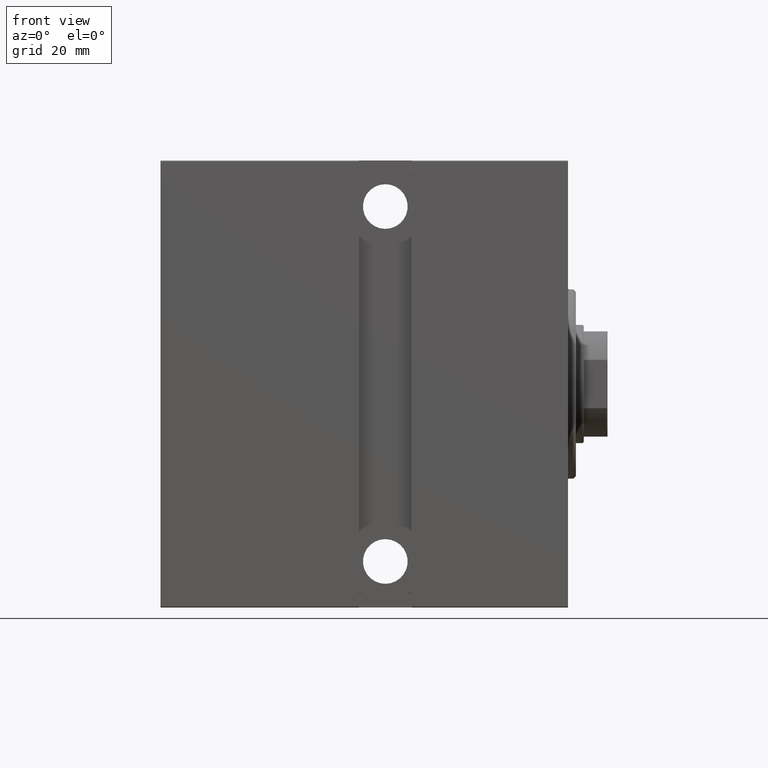
[diagram: clean part render]
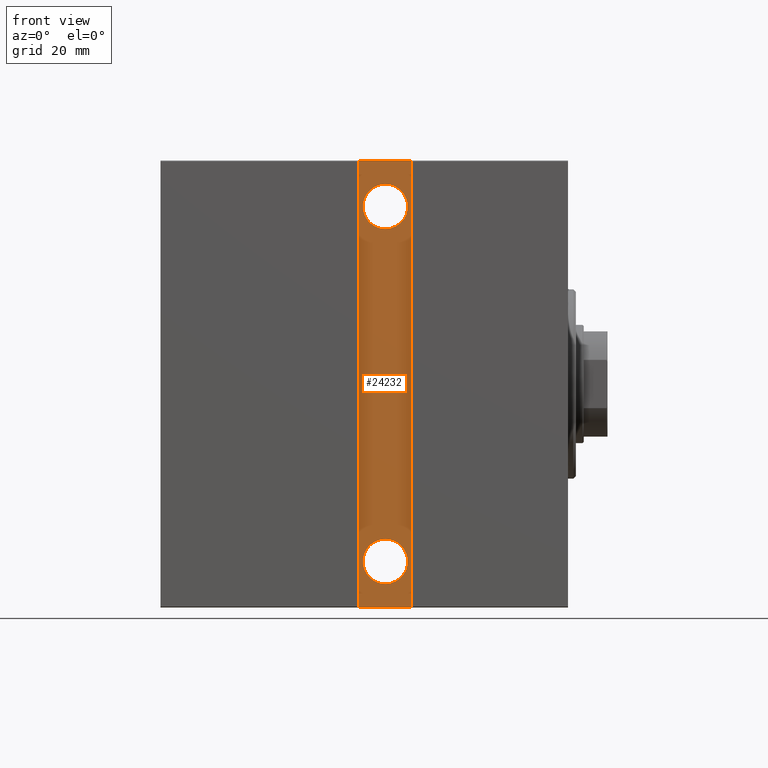
[diagram: same view with one face highlighted and labeled with its STEP entity id]
A machine part, front view. The second image highlights one B-rep face of the part: STEP entity #24232.
In plain terms, the highlighted planar face has unit normal (0, 1, 0).
Its self-contained STEP definition (entity closure, byte-faithful):
#188 = ORIENTED_EDGE ( 'NONE', *, *, #1610, .T. ) ;
#1558 = DIRECTION ( 'NONE',  ( 0.000000000000000000, 0.000000000000000000, -1.000000000000000000 ) ) ;
#1610 = EDGE_CURVE ( 'NONE', #10304, #27894, #15511, .T. ) ;
#2043 = CARTESIAN_POINT ( 'NONE',  ( 79.50000000000004263, 65.00000000000001421, -85.00000000000000000 ) ) ;
#2447 = AXIS2_PLACEMENT_3D ( 'NONE', #6226, #29390, #15527 ) ;
#2707 = DIRECTION ( 'NONE',  ( 0.000000000000000000, -0.000000000000000000, -1.000000000000000000 ) ) ;
#3656 = VECTOR ( 'NONE', #41721, 1000.000000000000000 ) ;
#3942 = DIRECTION ( 'NONE',  ( 8.163404592832035198E-17, 0.000000000000000000, 1.000000000000000000 ) ) ;
#4374 = LINE ( 'NONE', #17560, #8532 ) ;
#4855 = CIRCLE ( 'NONE', #17968, 8.500000000000007105 ) ;
#4907 = DIRECTION ( 'NONE',  ( 0.000000000000000000, -1.000000000000000000, 0.000000000000000000 ) ) ;
#5914 = CARTESIAN_POINT ( 'NONE',  ( 69.50000000000002842, 65.00000000000002842, -58.99999999999999289 ) ) ;
#6157 = VERTEX_POINT ( 'NONE', #16555 ) ;
#6226 = CARTESIAN_POINT ( 'NONE',  ( 69.50000000000002842, 65.00000000000002842, 67.50000000000000000 ) ) ;
#7867 = ORIENTED_EDGE ( 'NONE', *, *, #32206, .T. ) ;
#8169 = CARTESIAN_POINT ( 'NONE',  ( 69.50000000000002842, 65.00000000000002842, -67.50000000000000000 ) ) ;
#8261 = AXIS2_PLACEMENT_3D ( 'NONE', #41593, #24928, #35307 ) ;
#8532 = VECTOR ( 'NONE', #3942, 1000.000000000000000 ) ;
#8902 = CARTESIAN_POINT ( 'NONE',  ( 79.50000000000001421, 65.00000000000002842, -85.00000000000000000 ) ) ;
#9288 = CARTESIAN_POINT ( 'NONE',  ( 69.50000000000002842, 65.00000000000002842, -67.50000000000000000 ) ) ;
#9425 = PLANE ( 'NONE',  #23640 ) ;
#9528 = EDGE_CURVE ( 'NONE', #27894, #29755, #35530, .T. ) ;
#10304 = VERTEX_POINT ( 'NONE', #23485 ) ;
#11637 = CARTESIAN_POINT ( 'NONE',  ( 69.50000000000002842, 65.00000000000002842, -76.00000000000001421 ) ) ;
#12380 = EDGE_LOOP ( 'NONE', ( #7867, #188, #36463, #18118 ) ) ;
#13449 = EDGE_LOOP ( 'NONE', ( #19151, #37620 ) ) ;
#14949 = DIRECTION ( 'NONE',  ( -1.632680918566407040E-16, -0.000000000000000000, -1.000000000000000000 ) ) ;
#15511 = LINE ( 'NONE', #15933, #3656 ) ;
#15527 = DIRECTION ( 'NONE',  ( 0.000000000000000000, 0.000000000000000000, -1.000000000000000000 ) ) ;
#15933 = CARTESIAN_POINT ( 'NONE',  ( 79.50000000000004263, 65.00000000000002842, 84.99999999999995737 ) ) ;
#16543 = EDGE_CURVE ( 'NONE', #6157, #23033, #41454, .T. ) ;
#16555 = CARTESIAN_POINT ( 'NONE',  ( 69.50000000000002842, 65.00000000000002842, 58.99999999999999289 ) ) ;
#17560 = CARTESIAN_POINT ( 'NONE',  ( 59.50000000000000000, 65.00000000000002842, -85.00000000000000000 ) ) ;
#17968 = AXIS2_PLACEMENT_3D ( 'NONE', #9288, #31216, #1558 ) ;
#18118 = ORIENTED_EDGE ( 'NONE', *, *, #18851, .T. ) ;
#18794 = CARTESIAN_POINT ( 'NONE',  ( 79.50000000000001421, 65.00000000000002842, -85.00000000000000000 ) ) ;
#18851 = EDGE_CURVE ( 'NONE', #29755, #24848, #35698, .T. ) ;
#18895 = EDGE_CURVE ( 'NONE', #41080, #37692, #4855, .T. ) ;
#19133 = EDGE_CURVE ( 'NONE', #37692, #41080, #38053, .T. ) ;
#19151 = ORIENTED_EDGE ( 'NONE', *, *, #38607, .T. ) ;
#19362 = CARTESIAN_POINT ( 'NONE',  ( 0.000000000000000000, 65.00000000000002842, 0.000000000000000000 ) ) ;
#19377 = AXIS2_PLACEMENT_3D ( 'NONE', #8169, #4907, #40210 ) ;
#19998 = FACE_BOUND ( 'NONE', #13449, .T. ) ;
#22622 = DIRECTION ( 'NONE',  ( 0.000000000000000000, -1.000000000000000000, 0.000000000000000000 ) ) ;
#23033 = VERTEX_POINT ( 'NONE', #23128 ) ;
#23128 = CARTESIAN_POINT ( 'NONE',  ( 69.50000000000002842, 65.00000000000002842, 76.00000000000001421 ) ) ;
#23485 = CARTESIAN_POINT ( 'NONE',  ( 59.50000000000001421, 65.00000000000002842, 84.99999999999995737 ) ) ;
#23640 = AXIS2_PLACEMENT_3D ( 'NONE', #19362, #22622, #2707 ) ;
#24232 = ADVANCED_FACE ( 'NONE', ( #19998, #33209, #39294 ), #9425, .F. ) ;
#24848 = VERTEX_POINT ( 'NONE', #33109 ) ;
#24928 = DIRECTION ( 'NONE',  ( 0.000000000000000000, -1.000000000000000000, 0.000000000000000000 ) ) ;
#27888 = ORIENTED_EDGE ( 'NONE', *, *, #19133, .T. ) ;
#27894 = VERTEX_POINT ( 'NONE', #28174 ) ;
#28174 = CARTESIAN_POINT ( 'NONE',  ( 79.50000000000004263, 65.00000000000002842, 84.99999999999995737 ) ) ;
#28990 = DIRECTION ( 'NONE',  ( -1.000000000000000000, 0.000000000000000000, 0.000000000000000000 ) ) ;
#29390 = DIRECTION ( 'NONE',  ( 0.000000000000000000, -1.000000000000000000, 0.000000000000000000 ) ) ;
#29739 = VECTOR ( 'NONE', #28990, 1000.000000000000000 ) ;
#29755 = VERTEX_POINT ( 'NONE', #2043 ) ;
#31216 = DIRECTION ( 'NONE',  ( 0.000000000000000000, -1.000000000000000000, 0.000000000000000000 ) ) ;
#31566 = ORIENTED_EDGE ( 'NONE', *, *, #18895, .T. ) ;
#32206 = EDGE_CURVE ( 'NONE', #24848, #10304, #4374, .T. ) ;
#32468 = EDGE_LOOP ( 'NONE', ( #31566, #27888 ) ) ;
#33109 = CARTESIAN_POINT ( 'NONE',  ( 59.50000000000000000, 65.00000000000002842, -85.00000000000000000 ) ) ;
#33209 = FACE_BOUND ( 'NONE', #32468, .T. ) ;
#35307 = DIRECTION ( 'NONE',  ( 0.000000000000000000, 0.000000000000000000, -1.000000000000000000 ) ) ;
#35530 = LINE ( 'NONE', #8902, #41986 ) ;
#35698 = LINE ( 'NONE', #18794, #29739 ) ;
#36463 = ORIENTED_EDGE ( 'NONE', *, *, #9528, .T. ) ;
#37620 = ORIENTED_EDGE ( 'NONE', *, *, #16543, .T. ) ;
#37692 = VERTEX_POINT ( 'NONE', #11637 ) ;
#38053 = CIRCLE ( 'NONE', #19377, 8.500000000000007105 ) ;
#38607 = EDGE_CURVE ( 'NONE', #23033, #6157, #39775, .T. ) ;
#39294 = FACE_OUTER_BOUND ( 'NONE', #12380, .T. ) ;
#39775 = CIRCLE ( 'NONE', #2447, 8.500000000000014211 ) ;
#40210 = DIRECTION ( 'NONE',  ( 0.000000000000000000, 0.000000000000000000, -1.000000000000000000 ) ) ;
#41080 = VERTEX_POINT ( 'NONE', #5914 ) ;
#41454 = CIRCLE ( 'NONE', #8261, 8.500000000000014211 ) ;
#41593 = CARTESIAN_POINT ( 'NONE',  ( 69.50000000000002842, 65.00000000000002842, 67.50000000000000000 ) ) ;
#41721 = DIRECTION ( 'NONE',  ( 1.000000000000000000, -0.000000000000000000, -0.000000000000000000 ) ) ;
#41986 = VECTOR ( 'NONE', #14949, 1000.000000000000000 ) ;